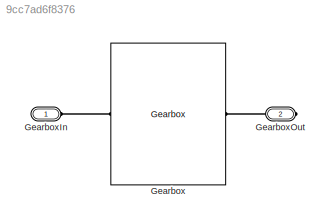
MODEL slx_9cc7ad6f8376
KIND library
CONFIG AbsTol = auto
CONFIG FixedStep = auto
CONFIG MaxStep = auto
CONFIG MinStep = auto
CONFIG RelTol = 1e-3
CONFIG SampleTimeConstraint = Unconstrained
CONFIG Solver = ode45
CONFIG SolverMode = Auto
CONFIG SolverName = ode45
CONFIG StartTime = 0.0
CONFIG StopTime = 10.0
BLOCK [Reference] Gearbox  REF=WheelAssembly/WheelAssembly/Gearbox
  Ports = [0, 0, 0, 0, 0, 1, 1]
  SourceBlock = WheelAssembly/WheelAssembly/Gearbox
  SourceType = SubSystem
BLOCK [PMIOPort] GearboxIn
  Port = 1
  Side = Left
BLOCK [PMIOPort] GearboxOut
  Port = 2
  Side = Right
PLINE Gearbox:LConn1 -- GearboxIn:RConn1
PLINE Gearbox:RConn1 -- GearboxOut:RConn1
